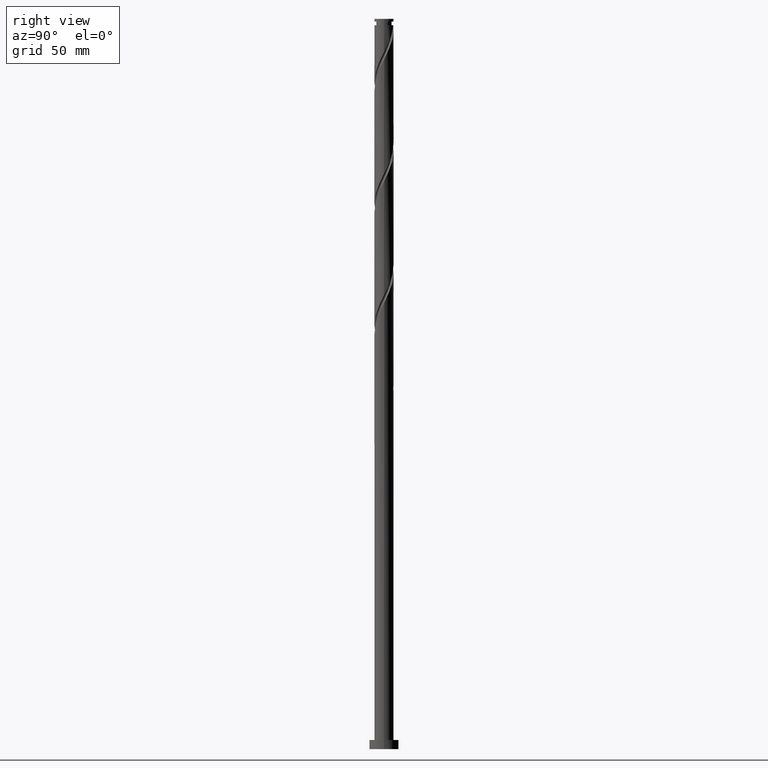
[diagram: clean part render]
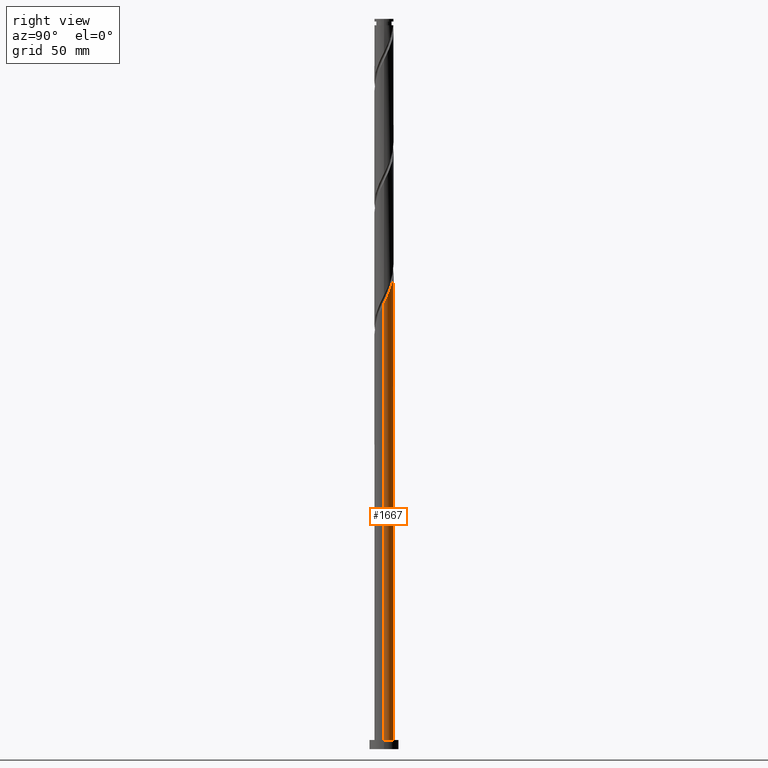
[diagram: same view with one face highlighted and labeled with its STEP entity id]
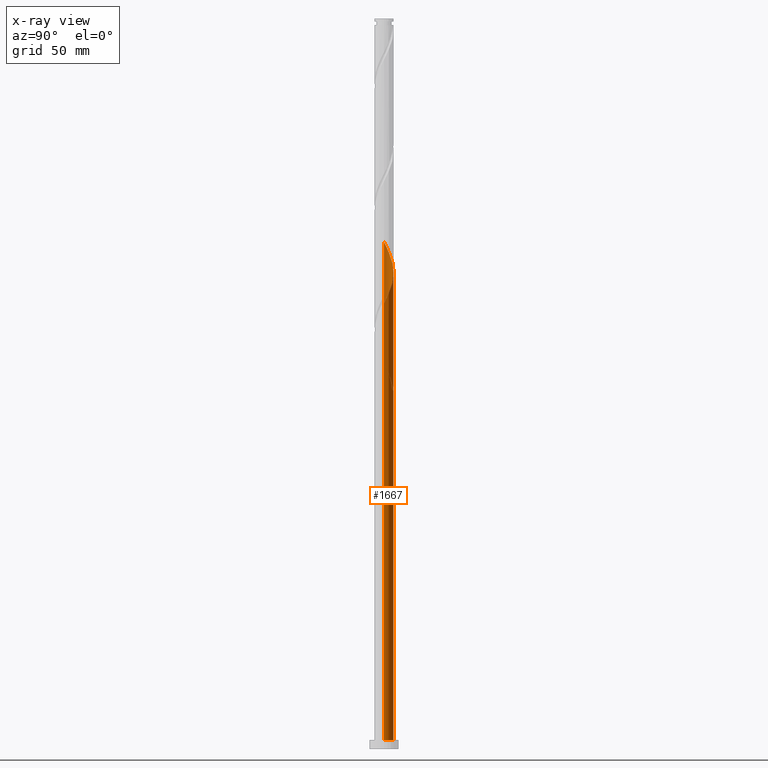
[diagram: x-ray of the same camera — body ghosted, the highlighted face saturated]
A machine part, right view. The second image highlights one B-rep face of the part: STEP entity #1667.
The next image is the same camera in x-ray: the body ghosted, the highlighted face saturated — about 0% of this face is hidden behind the body in this view.
In plain terms, the highlighted cylindrical surface (edge-blend (fillet) strip) has radius 5.25 mm, axis along (-0, -0, -1).
Its self-contained STEP definition (entity closure, byte-faithful):
#5 = CARTESIAN_POINT ( 'NONE',  ( -3.496422384488686586, 3.954998191903501326, 268.7046148871197602 ) ) ;
#28 = CARTESIAN_POINT ( 'NONE',  ( 0.5039755185200498477, 5.254806263359850682, 197.5935037760086175 ) ) ;
#47 = CARTESIAN_POINT ( 'NONE',  ( 0.5995732108659387327, 5.244758541012678243, 259.8157259982308460 ) ) ;
#63 = AXIS2_PLACEMENT_3D ( 'NONE', #85, #101, #435 ) ;
#64 = VERTEX_POINT ( 'NONE', #715 ) ;
#85 = CARTESIAN_POINT ( 'NONE',  ( 0.000000000000000000, 0.000000000000000000, 400.0000000000000000 ) ) ;
#101 = DIRECTION ( 'NONE',  ( -0.000000000000000000, -0.000000000000000000, -1.000000000000000000 ) ) ;
#136 = CARTESIAN_POINT ( 'NONE',  ( -4.298807956775186234, 3.063858733603723739, 208.7046148871197602 ) ) ;
#143 = CARTESIAN_POINT ( 'NONE',  ( -5.250000000000007105, -5.530913705646111693E-15, 277.6902827547093011 ) ) ;
#145 = CARTESIAN_POINT ( 'NONE',  ( -2.178945289945499297, 4.776473324894038974, 203.1490593315641604 ) ) ;
#153 = CARTESIAN_POINT ( 'NONE',  ( -3.047074594884214171, 4.275258636996276174, 267.5935037760086175 ) ) ;
#178 = CARTESIAN_POINT ( 'NONE',  ( -5.250000000000007105, 0.2991121215937677658, 210.4180247786581219 ) ) ;
#188 = DIRECTION ( 'NONE',  ( 1.000000000000000000, 0.000000000000000000, 0.000000000000000000 ) ) ;
#195 = EDGE_CURVE ( 'NONE', #476, #1312, #1111, .T. ) ;
#221 = DIRECTION ( 'NONE',  ( 0.000000000000000000, 0.000000000000000000, 1.000000000000000000 ) ) ;
#224 = VERTEX_POINT ( 'NONE', #1618 ) ;
#230 = CARTESIAN_POINT ( 'NONE',  ( 0.000000000000000000, 0.000000000000000000, 5.000000000000000000 ) ) ;
#244 = CARTESIAN_POINT ( 'NONE',  ( -5.249999999999999112, 7.773176018745929430E-15, 215.2745025750856200 ) ) ;
#253 = EDGE_CURVE ( 'NONE', #224, #584, #1969, .T. ) ;
#288 = CARTESIAN_POINT ( 'NONE',  ( 2.680972866025397305, 4.547456946508573239, 255.3712815537864174 ) ) ;
#298 = CARTESIAN_POINT ( 'NONE',  ( -0.5039755185200452958, 5.254806263359856011, 262.0379482204530177 ) ) ;
#300 = CARTESIAN_POINT ( 'NONE',  ( -5.007610418509818473, 1.576812574921923282, 212.0379482204530177 ) ) ;
#309 = CARTESIAN_POINT ( 'NONE',  ( -5.250000000000008882, 0.2991121215937540545, 277.0846914453247791 ) ) ;
#313 = CARTESIAN_POINT ( 'NONE',  ( -4.802783475295242077, 2.190947529756130052, 206.4823926648975316 ) ) ;
#325 = CARTESIAN_POINT ( 'NONE',  ( -2.091612452341801820, 4.815356409364604851, 198.7046148871197033 ) ) ;
#329 = ORIENTED_EDGE ( 'NONE', *, *, #253, .T. ) ;
#335 = CARTESIAN_POINT ( 'NONE',  ( -1.044736808961954200, 5.145000000000004903, 196.4823926648974748 ) ) ;
#337 = ORIENTED_EDGE ( 'NONE', *, *, #1783, .T. ) ;
#415 = CARTESIAN_POINT ( 'NONE',  ( 5.250000000000007105, 0.2511809962554264475, 244.8654979469400246 ) ) ;
#435 = DIRECTION ( 'NONE',  ( -1.000000000000000000, 0.000000000000000000, 0.000000000000000000 ) ) ;
#437 = CARTESIAN_POINT ( 'NONE',  ( 4.841880738665357065, 2.103133638467828970, 248.7046148871197317 ) ) ;
#444 = DIRECTION ( 'NONE',  ( -0.000000000000000000, -0.000000000000000000, -1.000000000000000000 ) ) ;
#458 = CARTESIAN_POINT ( 'NONE',  ( -0.5995732108659357351, 5.244758541012672026, 199.8157259982308744 ) ) ;
#476 = VERTEX_POINT ( 'NONE', #1005 ) ;
#483 = CARTESIAN_POINT ( 'NONE',  ( -3.496422384488686586, 3.954998191903501326, 202.0379482204530177 ) ) ;
#490 = VECTOR ( 'NONE', #853, 1000.000000000000000 ) ;
#492 = CARTESIAN_POINT ( 'NONE',  ( -3.124414752615059854, 4.219067723282166504, 205.3712815537863321 ) ) ;
#509 = LINE ( 'NONE', #973, #867 ) ;
#511 = DIRECTION ( 'NONE',  ( 0.000000000000000000, -0.000000000000000000, -1.000000000000000000 ) ) ;
#548 = CARTESIAN_POINT ( 'NONE',  ( 5.250000000000007105, 3.647413362642301460E-15, 244.3569494213759867 ) ) ;
#559 = EDGE_CURVE ( 'NONE', #1763, #64, #1043, .T. ) ;
#584 = VERTEX_POINT ( 'NONE', #939 ) ;
#586 = VECTOR ( 'NONE', #444, 1000.000000000000000 ) ;
#599 = CARTESIAN_POINT ( 'NONE',  ( -5.216027204956867891, 0.5962886860824332391, 276.4823926648974179 ) ) ;
#608 = CARTESIAN_POINT ( 'NONE',  ( -3.933332297989958537, 3.477268616829742420, 207.5935037760085891 ) ) ;
#617 = CARTESIAN_POINT ( 'NONE',  ( -5.153354738608599384, 1.144515236584389584, 275.3712815537863889 ) ) ;
#619 = CARTESIAN_POINT ( 'NONE',  ( -4.570344347720266320, 2.583496186035776354, 209.8157259982308176 ) ) ;
#627 = CARTESIAN_POINT ( 'NONE',  ( -3.869364956144053291, 3.548311547224172191, 269.8157259982306755 ) ) ;
#637 =( BOUNDED_CURVE ( )  B_SPLINE_CURVE ( 2, ( #548, #415, #874, #1203, #1826, #437, #1045, #894, #1522, #698, #1316, #288, #1234, #1688, #1439, #47, #1068, #298, #1757, #1847, #1532, #1553, #153, #5, #627, #1542, #915, #1837, #1078, #617, #599, #309, #143 ),
 .UNSPECIFIED., .F., .T. ) 
 B_SPLINE_CURVE_WITH_KNOTS ( ( 3, 2, 2, 2, 2, 2, 2, 2, 2, 2, 2, 2, 2, 2, 2, 2, 3 ),
 ( 0.1795286012773113782, 0.1833333333333333481, 0.1916666666666666519, 0.1999999999999999556, 0.2083333333333333703, 0.2166666666666666741, 0.2249999999999999778, 0.2333333333333332815, 0.2416666666666666963, 0.2500000000000000000, 0.2583333333333333037, 0.2666666666666667185, 0.2750000000000000222, 0.2833333333333333259, 0.2916666666666666297, 0.3000000000000000444, 0.3045286012773117390 ),
 .UNSPECIFIED. ) 
 CURVE ( )  GEOMETRIC_REPRESENTATION_ITEM ( )  RATIONAL_B_SPLINE_CURVE ( ( 0.9066196499552294785, 0.9068171577856420917, 0.9090909090909411461, 0.9041108139711893088, 0.9090909090909411461, 0.9041108139711893088, 0.9090909090909411461, 0.9041108139711893088, 0.9090909090909411461, 0.9041108139711893088, 0.9090909090909411461, 0.9041108139711893088, 0.9090909090909411461, 0.9041108139711893088, 0.9090909090909411461, 0.9041108139711893088, 0.9090909090909411461, 0.9041108139711893088, 0.9090909090909411461, 0.9041108139711893088, 0.9090909090909411461, 0.9041108139711893088, 0.9090909090909411461, 0.9041108139711893088, 0.9090909090909411461, 0.9041108139711893088, 0.9090909090909411461, 0.9041108139711893088, 0.9090909090909411461, 0.9041108139711893088, 0.9090909090909411461, 0.9063845652764881411, 0.9066196499552294785 ) ) 
 REPRESENTATION_ITEM ( '' )  );
#695 = CARTESIAN_POINT ( 'NONE',  ( -5.250000000000007105, -2.018036081789797309E-14, 211.0236160880426723 ) ) ;
#698 = CARTESIAN_POINT ( 'NONE',  ( 3.567856639204737945, 3.890678500055766431, 253.1490593315641604 ) ) ;
#715 = CARTESIAN_POINT ( 'NONE',  ( 1.044736808961956420, 5.145000000000000462, 196.4823926648974748 ) ) ;
#718 = FACE_OUTER_BOUND ( 'NONE', #1745, .T. ) ;
#757 = CARTESIAN_POINT ( 'NONE',  ( -2.597726805279742646, 4.595519082089053242, 199.8157259982307892 ) ) ;
#776 = CARTESIAN_POINT ( 'NONE',  ( -1.676917713865607951, 5.005489703279510927, 202.0379482204531314 ) ) ;
#811 = ORIENTED_EDGE ( 'NONE', *, *, #1150, .F. ) ;
#831 = DIRECTION ( 'NONE',  ( -1.000000000000000000, 0.000000000000000000, 0.000000000000000000 ) ) ;
#853 = DIRECTION ( 'NONE',  ( -0.000000000000000000, -0.000000000000000000, -1.000000000000000000 ) ) ;
#867 = VECTOR ( 'NONE', #1898, 1000.000000000000000 ) ;
#874 = CARTESIAN_POINT ( 'NONE',  ( 5.226019884829717022, 0.5012146878977641329, 245.3712815537863605 ) ) ;
#894 = CARTESIAN_POINT ( 'NONE',  ( 4.298807956775192451, 3.063858733603723739, 250.9268371093419319 ) ) ;
#915 = CARTESIAN_POINT ( 'NONE',  ( -4.522545501547328151, 2.666286216150487665, 272.0379482204529609 ) ) ;
#919 = CARTESIAN_POINT ( 'NONE',  ( -5.250000000000007105, -2.018036081789796994E-14, 211.0236160880426723 ) ) ;
#926 = AXIS2_PLACEMENT_3D ( 'NONE', #230, #221, #188 ) ;
#931 = CARTESIAN_POINT ( 'NONE',  ( -3.047074594884214171, 4.275258636996276174, 200.9268371093419603 ) ) ;
#939 = CARTESIAN_POINT ( 'NONE',  ( -5.250000000000000000, 0.000000000000000000, 5.000000000000000000 ) ) ;
#973 = CARTESIAN_POINT ( 'NONE',  ( -5.250000000000000000, 0.000000000000000000, 400.0000000000000000 ) ) ;
#989 = ORIENTED_EDGE ( 'NONE', *, *, #1575, .F. ) ;
#1005 = CARTESIAN_POINT ( 'NONE',  ( -1.044736808961954200, 5.145000000000004903, 196.4823926648974748 ) ) ;
#1011 = LINE ( 'NONE', #1664, #586 ) ;
#1043 =( BOUNDED_CURVE ( )  B_SPLINE_CURVE ( 2, ( #1421, #1236, #1080, #1730, #300, #1536, #619, #136, #608, #1091, #492, #1226, #145, #776, #1849, #458, #1391, #28, #1070 ),
 .UNSPECIFIED., .F., .T. ) 
 B_SPLINE_CURVE_WITH_KNOTS ( ( 3, 2, 2, 2, 2, 2, 2, 2, 2, 3 ),
 ( 0.9295286012773116280, 0.9333333333333333481, 0.9416666666666666519, 0.9499999999999999556, 0.9583333333333333703, 0.9666666666666666741, 0.9749999999999999778, 0.9833333333333332815, 0.9916666666666666963, 1.000000000000000000 ),
 .UNSPECIFIED. ) 
 CURVE ( )  GEOMETRIC_REPRESENTATION_ITEM ( )  RATIONAL_B_SPLINE_CURVE ( ( 0.9066196499552244825, 0.9068171577856373178, 0.9090909090909361501, 0.9041108139711843128, 0.9090909090909361501, 0.9041108139711843128, 0.9090909090909361501, 0.9041108139711843128, 0.9090909090909361501, 0.9041108139711843128, 0.9090909090909361501, 0.9041108139711843128, 0.9090909090909361501, 0.9041108139711843128, 0.9090909090909361501, 0.9041108139711843128, 0.9090909090909361501, 0.9041108139711843128, 0.9090909090909361501 ) ) 
 REPRESENTATION_ITEM ( '' )  );
#1045 = CARTESIAN_POINT ( 'NONE',  ( 4.570344347720274314, 2.583496186035778130, 249.8157259982307608 ) ) ;
#1061 = ORIENTED_EDGE ( 'NONE', *, *, #1126, .F. ) ;
#1063 = CIRCLE ( 'NONE', #1814, 5.250000000000000000 ) ;
#1068 = CARTESIAN_POINT ( 'NONE',  ( 0.04779884617294657967, 5.249782402186265351, 260.9268371093419319 ) ) ;
#1070 = CARTESIAN_POINT ( 'NONE',  ( 1.044736808961956420, 5.145000000000000462, 196.4823926648974464 ) ) ;
#1072 = CARTESIAN_POINT ( 'NONE',  ( -4.978069106951918954, 1.667731383170259596, 207.5935037760085891 ) ) ;
#1078 = CARTESIAN_POINT ( 'NONE',  ( -4.978069106951918954, 1.667731383170259596, 274.2601704426751894 ) ) ;
#1080 = CARTESIAN_POINT ( 'NONE',  ( -5.226019884829710804, 0.5012146878977687958, 214.2601704426752178 ) ) ;
#1091 = CARTESIAN_POINT ( 'NONE',  ( -3.567856639204733948, 3.890678500055764655, 206.4823926648975601 ) ) ;
#1111 =( BOUNDED_CURVE ( )  B_SPLINE_CURVE ( 2, ( #335, #1853, #325, #757, #931, #483, #1424, #2013, #2002, #313, #1072, #1703, #1414, #178, #919 ),
 .UNSPECIFIED., .F., .T. ) 
 B_SPLINE_CURVE_WITH_KNOTS ( ( 3, 2, 2, 2, 2, 2, 2, 3 ),
 ( 0.000000000000000000, 0.008333333333333303727, 0.01666666666666671848, 0.02500000000000002220, 0.03333333333333332593, 0.04166666666666662966, 0.05000000000000004441, 0.05452860127731153084 ),
 .UNSPECIFIED. ) 
 CURVE ( )  GEOMETRIC_REPRESENTATION_ITEM ( )  RATIONAL_B_SPLINE_CURVE ( ( 0.9090909090909411461, 0.9041108139711893088, 0.9090909090909411461, 0.9041108139711893088, 0.9090909090909411461, 0.9041108139711893088, 0.9090909090909411461, 0.9041108139711893088, 0.9090909090909411461, 0.9041108139711893088, 0.9090909090909411461, 0.9041108139711893088, 0.9090909090909411461, 0.9063845652764881411, 0.9066196499552294785 ) ) 
 REPRESENTATION_ITEM ( '' )  );
#1117 = CARTESIAN_POINT ( 'NONE',  ( 5.250000000000007105, 3.647413362642301460E-15, 244.3569494213760152 ) ) ;
#1126 = EDGE_CURVE ( 'NONE', #1139, #1639, #637, .T. ) ;
#1139 = VERTEX_POINT ( 'NONE', #1117 ) ;
#1150 = EDGE_CURVE ( 'NONE', #1312, #584, #509, .T. ) ;
#1190 = CARTESIAN_POINT ( 'NONE',  ( -5.250000000000007105, -5.530913705646111693E-15, 277.6902827547093011 ) ) ;
#1203 = CARTESIAN_POINT ( 'NONE',  ( 5.173340098354294092, 1.050491511376013376, 246.4823926648975316 ) ) ;
#1226 = CARTESIAN_POINT ( 'NONE',  ( -2.680972866025389756, 4.547456946508571463, 204.2601704426752747 ) ) ;
#1234 = CARTESIAN_POINT ( 'NONE',  ( 2.178945289945503738, 4.776473324894045192, 256.4823926648974748 ) ) ;
#1236 = CARTESIAN_POINT ( 'NONE',  ( -5.249999999999997335, 0.2511809962554474307, 214.7659540495215822 ) ) ;
#1312 = VERTEX_POINT ( 'NONE', #695 ) ;
#1316 = CARTESIAN_POINT ( 'NONE',  ( 3.124414752615067847, 4.219067723282169169, 254.2601704426752178 ) ) ;
#1391 = CARTESIAN_POINT ( 'NONE',  ( -0.04779884617294290206, 5.249782402186260022, 198.7046148871197033 ) ) ;
#1414 = CARTESIAN_POINT ( 'NONE',  ( -5.216027204956867891, 0.5962886860824332391, 209.8157259982308744 ) ) ;
#1421 = CARTESIAN_POINT ( 'NONE',  ( -5.249999999999999112, 7.773176018745929430E-15, 215.2745025750855916 ) ) ;
#1424 = CARTESIAN_POINT ( 'NONE',  ( -3.869364956144053291, 3.548311547224172191, 203.1490593315641320 ) ) ;
#1439 = CARTESIAN_POINT ( 'NONE',  ( 1.138245462365778282, 5.125124122146095473, 258.7046148871196465 ) ) ;
#1449 = CARTESIAN_POINT ( 'NONE',  ( 0.000000000000000000, 0.000000000000000000, 196.4823926648975032 ) ) ;
#1482 = CYLINDRICAL_SURFACE ( 'NONE', #63, 5.250000000000000000 ) ;
#1500 = LINE ( 'NONE', #1977, #490 ) ;
#1522 = CARTESIAN_POINT ( 'NONE',  ( 3.933332297989966087, 3.477268616829743308, 252.0379482204530461 ) ) ;
#1532 = CARTESIAN_POINT ( 'NONE',  ( -2.091612452341801820, 4.815356409364604851, 265.3712815537863889 ) ) ;
#1536 = CARTESIAN_POINT ( 'NONE',  ( -4.841880738665349959, 2.103133638467831190, 210.9268371093419319 ) ) ;
#1542 = CARTESIAN_POINT ( 'NONE',  ( -4.242307527799417777, 3.141624902544845277, 270.9268371093418750 ) ) ;
#1549 = ORIENTED_EDGE ( 'NONE', *, *, #1640, .T. ) ;
#1553 = CARTESIAN_POINT ( 'NONE',  ( -2.597726805279742646, 4.595519082089053242, 266.4823926648974179 ) ) ;
#1575 = EDGE_CURVE ( 'NONE', #1639, #1763, #1011, .T. ) ;
#1618 = CARTESIAN_POINT ( 'NONE',  ( 5.250000000000000000, 6.429395695523603167E-16, 5.000000000000000000 ) ) ;
#1639 = VERTEX_POINT ( 'NONE', #1190 ) ;
#1640 = EDGE_CURVE ( 'NONE', #1139, #224, #1500, .T. ) ;
#1664 = CARTESIAN_POINT ( 'NONE',  ( -5.250000000000000000, 0.000000000000000000, 400.0000000000000000 ) ) ;
#1667 = ADVANCED_FACE ( 'NONE', ( #718 ), #1482, .T. ) ;
#1688 = CARTESIAN_POINT ( 'NONE',  ( 1.676917713865613502, 5.005489703279513591, 257.5935037760085606 ) ) ;
#1703 = CARTESIAN_POINT ( 'NONE',  ( -5.153354738608599384, 1.144515236584389584, 208.7046148871197886 ) ) ;
#1706 = ORIENTED_EDGE ( 'NONE', *, *, #195, .F. ) ;
#1730 = CARTESIAN_POINT ( 'NONE',  ( -5.173340098354292316, 1.050491511376014042, 213.1490593315641888 ) ) ;
#1745 = EDGE_LOOP ( 'NONE', ( #1061, #1549, #329, #811, #1706, #337, #1918, #989 ) ) ;
#1757 = CARTESIAN_POINT ( 'NONE',  ( -1.044736808961954422, 5.145000000000004903, 263.1490593315641604 ) ) ;
#1763 = VERTEX_POINT ( 'NONE', #244 ) ;
#1783 = EDGE_CURVE ( 'NONE', #476, #64, #1063, .T. ) ;
#1814 = AXIS2_PLACEMENT_3D ( 'NONE', #1449, #511, #831 ) ;
#1826 = CARTESIAN_POINT ( 'NONE',  ( 5.007610418509827355, 1.576812574921920840, 247.5935037760086175 ) ) ;
#1837 = CARTESIAN_POINT ( 'NONE',  ( -4.802783475295242077, 2.190947529756130052, 273.1490593315641604 ) ) ;
#1847 = CARTESIAN_POINT ( 'NONE',  ( -1.585498099403861438, 5.035193736640155571, 264.2601704426751894 ) ) ;
#1849 = CARTESIAN_POINT ( 'NONE',  ( -1.138245462365771621, 5.125124122146089256, 200.9268371093419034 ) ) ;
#1853 = CARTESIAN_POINT ( 'NONE',  ( -1.585498099403861438, 5.035193736640155571, 197.5935037760086175 ) ) ;
#1898 = DIRECTION ( 'NONE',  ( -0.000000000000000000, -0.000000000000000000, -1.000000000000000000 ) ) ;
#1918 = ORIENTED_EDGE ( 'NONE', *, *, #559, .F. ) ;
#1969 = CIRCLE ( 'NONE', #926, 5.250000000000000000 ) ;
#1977 = CARTESIAN_POINT ( 'NONE',  ( 5.250000000000000000, 6.429395695523603167E-16, 400.0000000000000000 ) ) ;
#2002 = CARTESIAN_POINT ( 'NONE',  ( -4.522545501547328151, 2.666286216150487665, 205.3712815537863605 ) ) ;
#2013 = CARTESIAN_POINT ( 'NONE',  ( -4.242307527799417777, 3.141624902544845277, 204.2601704426752462 ) ) ;